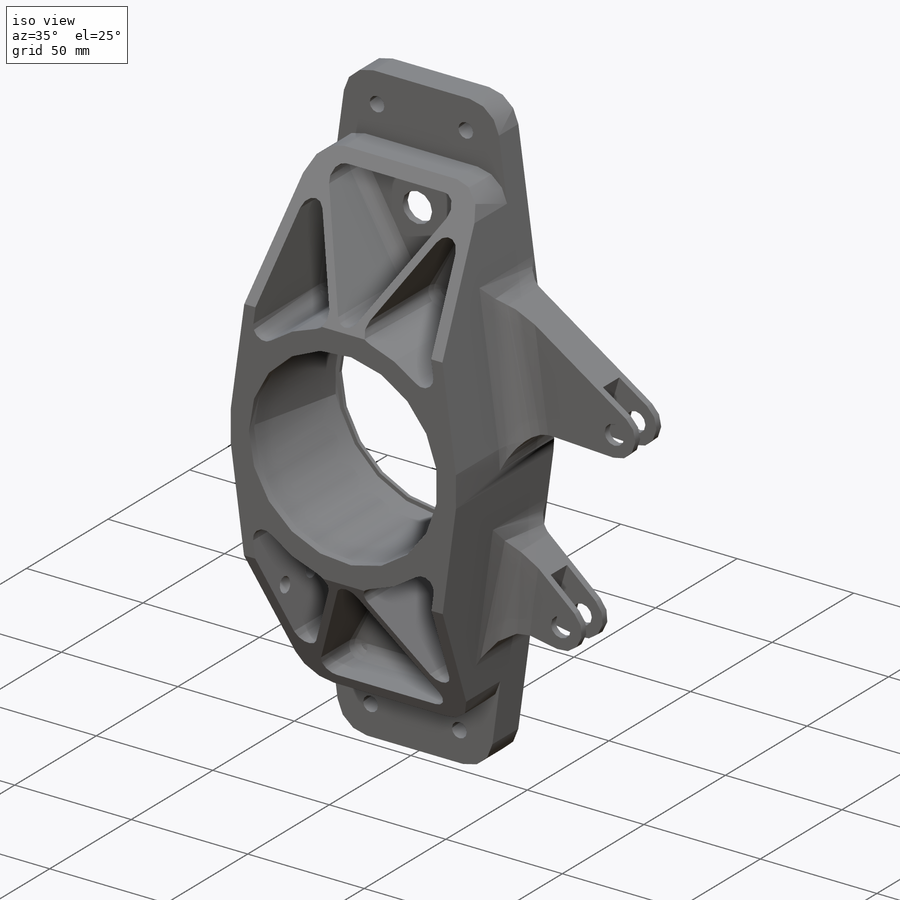
[diagram: iso view]
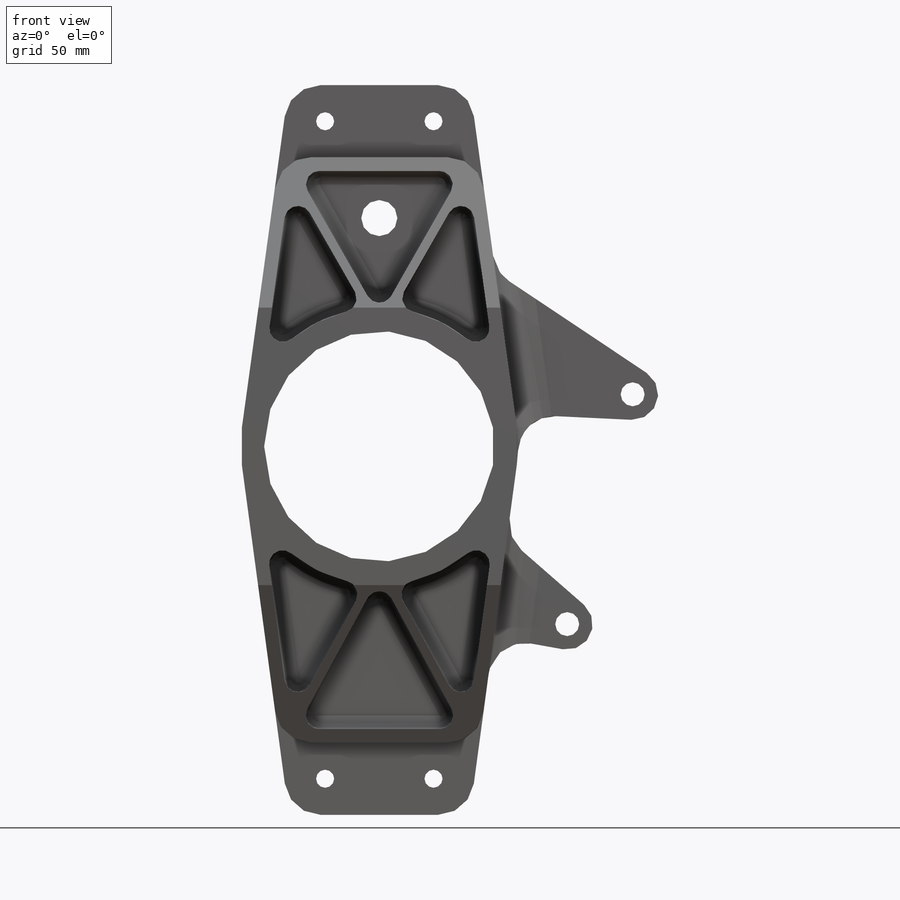
[diagram: front view]
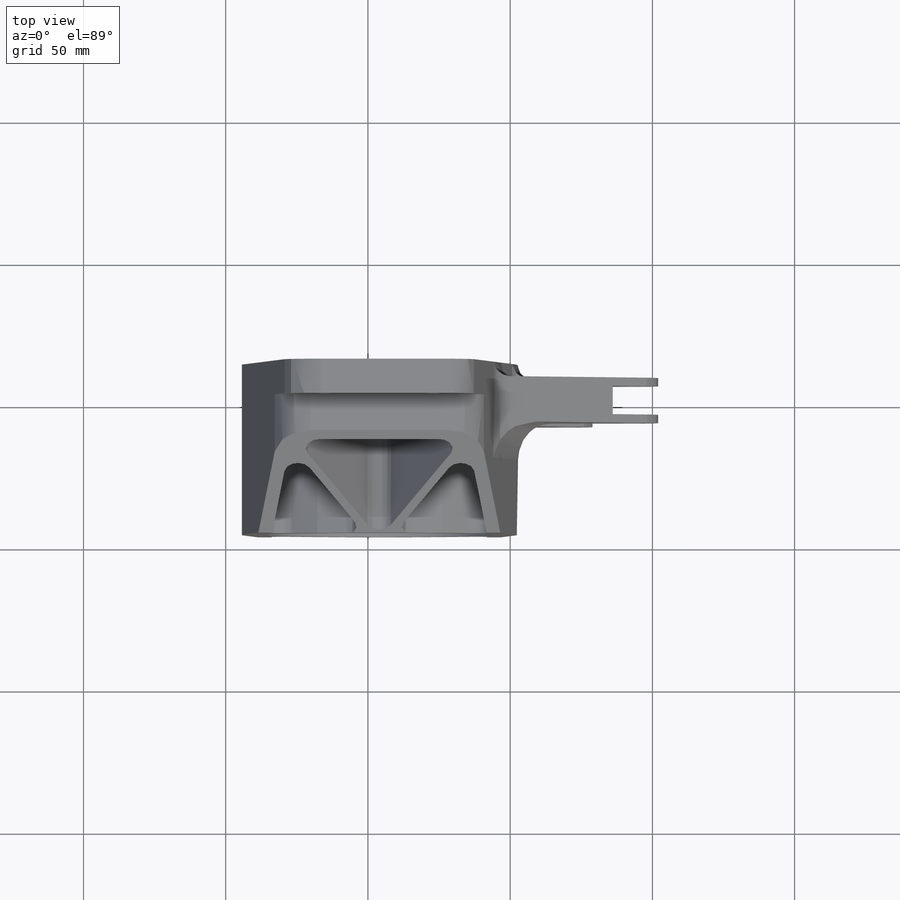
[diagram: top view]
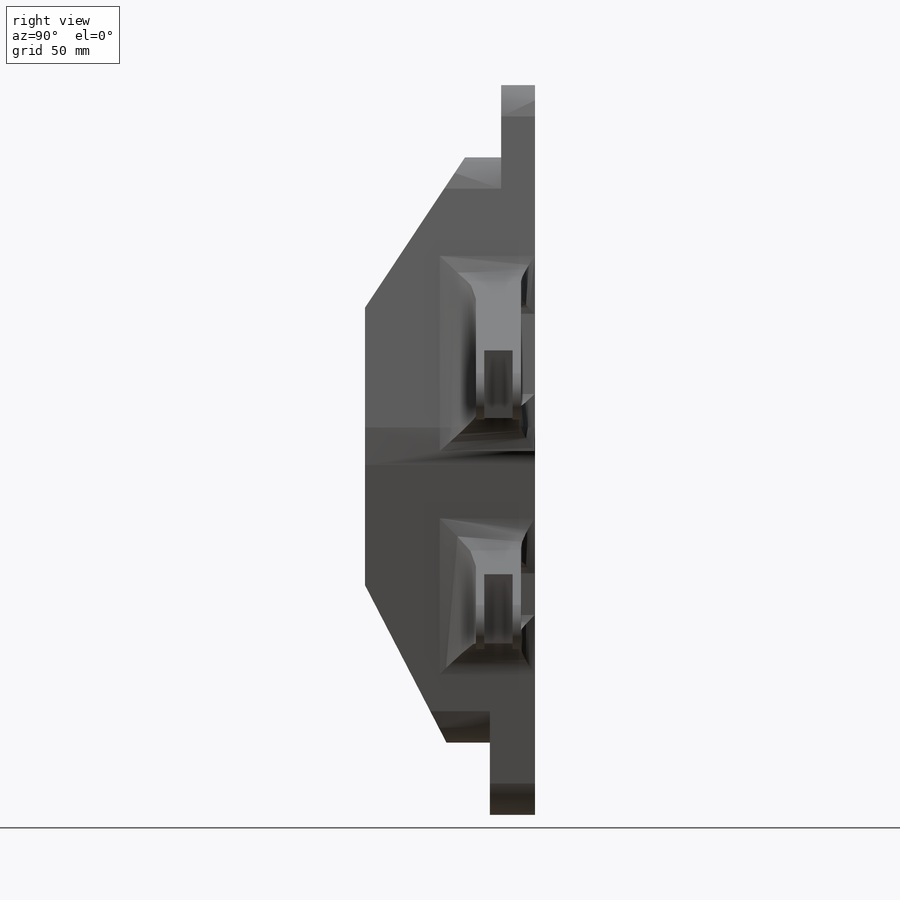
[diagram: right view]
SOLIDWORKS PART (.sldprt)
format: sldprt  version: not decoded by parser v0  size: 3,110,400 bytes
history: native  units: mm
features: sketch x35, cut_extrude x16, fillet x8, extrude x5, plane x3, revolve x2, cut_revolve x2, mirror x2, material x1 (+18 scaffold rows collapsed; 5 parser-record rows omitted)
feature tree (97):
  scaffold x18  (default folders/planes/origin — collapsed)
  material  "6061-T6 (SS)"
  sketch  "Geometry"  dims[c1.WheelWidth=177.8mm c1.D2=307.975mm c1.D3=~434.53961mm c1.KingpinAngle=6.0deg c1.KingpinOffset=25.4mm c2.D3=279.4mm c2.TireODf=508.0mm c2.D1=114.3mm c3.D3=116.84mm c3.KingpinOffset=19.05mm c3.D4=~224.220706mm c4.D4=~168.766959deg c5.D4=~224.141957mm c6.D4=0.0deg c6.D5=25.4mm]
  sketch  "BearingInformation"  dims[c1.BearingOD=84.836mm c1.BearingSpacing=57.15mm c1.D1=3.175mm c1.D2=3.175mm c1.D3=9.525mm c1.D4=3.15mm c1.D5=3.175mm c1.D6=57.15mm c2.D3=1.5875mm c2.D7=12.7mm c2.D2=81.0mm c2.D6=53.975mm c2.D8=10.0mm c2.D9=31.75mm c3.D6=6.35mm c3.D10=0.127mm c3.D5=88.5mm]
  plane  "CaliperMountingPlane"  Offset=0.174mm
  sketch  "Sketch3"  dims[UCAMountWidth=63.5mm LCAMountWidth=63.5mm D2=12.7mm D3=12.7mm D4=6.35mm D1=6.35mm]
  extrude  "Base Extrude"  [1 undecoded]
  sketch  "Sketch4"  dims[c1.BearingHousingThickness=6.35mm c1.UCAMountThickness=12.7mm c1.LCAMountThickness=15.875mm c1.D1=~17.283756mm c2.D1=90.0deg c3.D1=25.4mm c3.D2=25.4mm c3.D3=19.05mm c3.D4=22.225mm c3.D5=12.7mm c3.D6=~15.246427mm c4.D3=~18.928748mm c5.D3=10.0deg c5.D7=~25.014117mm c6.D7=90.0deg c7.D7=26.162mm c7.D8=11.1125mm c7.D1=12.7mm c7.D2=12.7mm c7.D3=11.1125mm c8.D3=10.0deg c9.D3=25.4mm]
  cut_extrude  "SideTaperProfile"  [1 undecoded]
  parser-record x5  (decoder bookkeeping rows leaked as tree rows — omitted from the tree; the rows remain in map.json)
  sketch  "Sketch5"  dims[D4=4.7625mm D5=4.7625mm D6=4.7625mm D12=4.7625mm D9=4.7625mm D1=4.7625mm D2=6.35mm D3=4.7625mm D7=1.5875mm D8=1.5875mm D10=1.5875mm D11=1.5875mm]
  cut_extrude  "BackPocket"  Depth=1.5875mm
  sketch  "Sketch6"  dims[D1=6.35mm]
  cut_extrude  "FrontPocket"  Depth=1.5875mm
  fillet  "PocketFillets"  Radius=4.7625mm
  sketch  "Sketch7"
  revolve  "BearingShoulder"  Angle=360deg
  sketch  "Sketch8"
  cut_revolve  "Snap Ring Groove"  Angle=360deg
  sketch  "Sketch9"  dims[c1.D2=8.4328mm c1.D3=~181.84876mm c1.D4=20.0mm c1.D6=22.225mm c2.D4=10.0mm c2.D1=84.0mm c2.D5=127.0mm c2.D7=82.55mm c2.D8=25.4mm c3.D4=4.7625mm c3.D5=~43.641506mm c4.D5=~30.973401deg c4.D6=~36.820238mm c5.D6=~30.973401deg c5.D7=~41.292499mm c5.D8=~41.292499mm c6.D7=~18.310553mm c6.D8=~11.310621mm c6.D9=~32.070605mm]
  extrude  "Brake Caliper Extrude"  Depth=15.875mm
  sketch  "Sketch10"  dims[c1.D3=3.175mm c1.D4=12.7mm c1.D5=4.7625mm c1.D7=4.7625mm c1.D1=3.175mm c1.D2=3.175mm c2.D4=9.525mm c2.D1=9.525mm c2.D3=3.175mm c2.D6=3.175mm]
  cut_extrude  "Brake Caliper Pocket"  Depth=1.5875mm
  mirror  "Brake Caliper Pocket Mirror"
  fillet  "Fillet1"  Radius=3.175mm
  sketch  "3DSketch3"
  plane  "CaliperCutoutPlane"
  sketch  "Sketch15"  dims[c1.D1=10.0mm c1.D2=~19.92884mm c1.D3=~19.92884mm c1.D4=10.0mm c2.D1=10.0mm]
  cut_extrude  "CaliperCutouts"  [1 undecoded]
  sketch  "Sketch26"  dims[D1=0.0mm]
  extrude  "Boss-Extrude2"  [1 undecoded]
  sketch  "Sketch27"
  extrude  "Boss-Extrude3"  [1 undecoded]
  fillet  "Fillet2"  Radius=12.7mm
  fillet  "Fillet4"  Radius=4.7625mm
  revolve  "CaliperMirror"  [1 undecoded]
  fillet  "Fillet5"  Radius=12.7mm
  fillet  "Fillet6"  Radius=4.7625mm
  fillet  "Upper/Lower Mount Fillets"  Radius=12.7mm
  sketch  "Sketch11"  dims[D1=3.175mm]
  cut_extrude  "Lower Mount Backside Pocket"  Depth=9.525mm
  sketch  "Sketch12"  dims[c1.D1=3.175mm c1.D2=3.175mm c2.D1=3.175mm]
  cut_extrude  "Upper Mount Backside Pocket"  Depth=9.525mm
  fillet  "Pocket Fillets"  Radius=3.175mm
  sketch  "Sketch13"  dims[D1=6.35mm D2=38.1mm D3=12.7mm]
  sketch  "PartMarking"
  cut_extrude  "Top Mount Holes"  [1 undecoded]
  sketch  "Sketch14"  dims[D1=6.35mm D2=12.7mm D3=38.1mm]
  cut_extrude  "Bottom Mount Holes"  [1 undecoded]
  sketch  "Sketch16"
  sketch  "Sketch17"  dims[D2=4.7625mm D4=4.7625mm D1=6.35mm D3=6.35mm]
  cut_extrude  "Extrude11"  [1 undecoded]
  sketch  "Sketch18"  dims[c1.D1=6.35mm c1.D4=6.35mm c1.D2=15.875mm c1.D3=28.575mm c2.D4=12.7mm]
  cut_extrude  "Steering Arm Holes"  [1 undecoded]
  sketch  "Sketch20"  dims[D1=0.127mm]
  cut_extrude  "Cut-Extrude2"  [1 undecoded]
  sketch  "ModelUUID"
  sketch  "UUID"
  sketch  "ModelUUID"
  cut_revolve  "67301e38-62c2-4cdf-85a3-051775f79e80"  [1 undecoded]
  sketch  "UUID"
  sketch  "ModelUUID"
  sketch  "Sketch21"
  extrude  "Boss-Extrude1"  Depth=25.4mm
  sketch  "Sketch22"  dims[D2=6.35mm D1=19.05mm]
  cut_extrude  "Cut-Extrude3"  [1 undecoded]
  sketch  "Sketch23"
  cut_extrude  "Cut-Extrude4"  Depth=5.08mm
  sketch  "Sketch24"
  sketch  "Sketch25"  dims[D1=12.7mm D2=70.0mm D3=16.0mm D4=80.264mm]
  cut_extrude  "Cut-Extrude5"  [1 undecoded]
  sketch  "Brake Rotor ID"  dims[D1=144.272mm]
  plane  "Plane1"  Offset=127mm
  mirror  "Mirror1"
  sketch  "Sketch28"
  cut_extrude  "Cut-Extrude6"  Depth=194.818mm
decode coverage: 39 of 70 modeling features carry decoded parameters
note: ~ marks probable driven/reference dimensions
note: 14 parameter values undecoded
summary: no parameter record found for 14 features
note: suppression state not decoded; provenance and decode notes live in map.json
